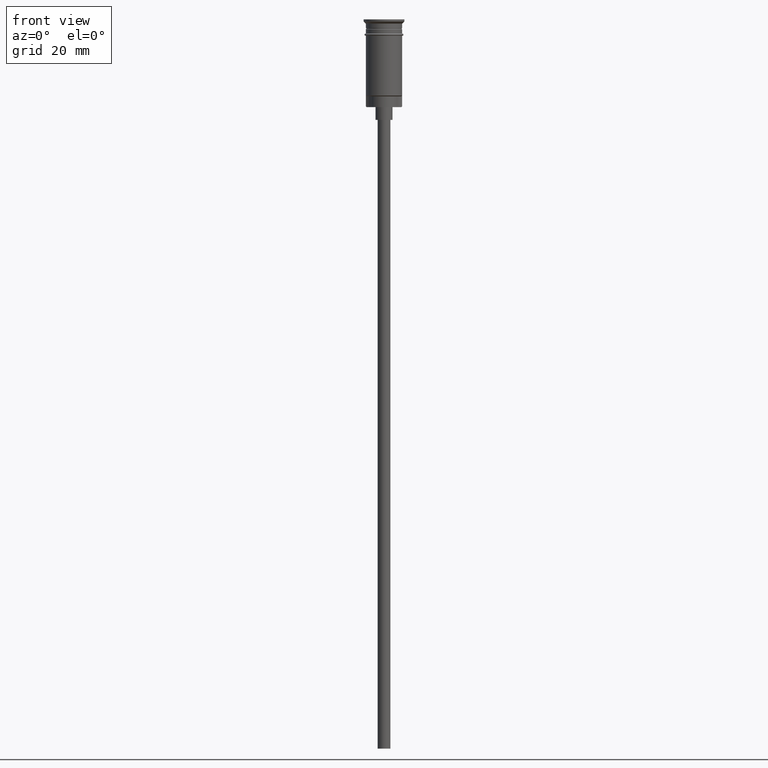
[diagram: clean part render]
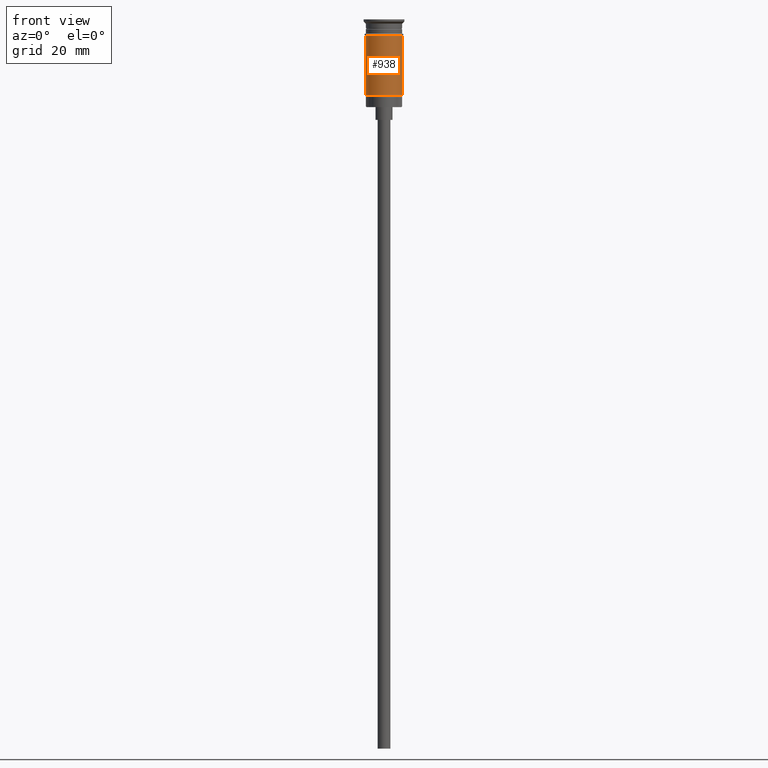
[diagram: same view with one face highlighted and labeled with its STEP entity id]
A machine part, front view. The second image highlights one B-rep face of the part: STEP entity #938.
In plain terms, the highlighted cylindrical surface (edge-blend (fillet) strip) has radius 4.25 mm, axis along (-0, -0, 1).
Its self-contained STEP definition (entity closure, byte-faithful):
#137 = CARTESIAN_POINT ( 'NONE',  ( 4.249999999999996447, 5.204748896376247741E-16, -17.80000000000000071 ) ) ;
#190 = CIRCLE ( 'NONE', #1125, 4.249999999999996447 ) ;
#238 = VERTEX_POINT ( 'NONE', #790 ) ;
#241 = VERTEX_POINT ( 'NONE', #1186 ) ;
#252 = DIRECTION ( 'NONE',  ( -0.000000000000000000, -0.000000000000000000, 1.000000000000000000 ) ) ;
#253 = ORIENTED_EDGE ( 'NONE', *, *, #375, .F. ) ;
#281 = EDGE_CURVE ( 'NONE', #241, #1119, #1097, .T. ) ;
#347 = VERTEX_POINT ( 'NONE', #137 ) ;
#375 = EDGE_CURVE ( 'NONE', #1119, #238, #895, .T. ) ;
#411 = CARTESIAN_POINT ( 'NONE',  ( 0.000000000000000000, 0.000000000000000000, -3.799999999999998934 ) ) ;
#441 = DIRECTION ( 'NONE',  ( -0.000000000000000000, -0.000000000000000000, 1.000000000000000000 ) ) ;
#546 = CARTESIAN_POINT ( 'NONE',  ( -4.249999999999999112, 5.204748896376250699E-16, -3.799999999999998934 ) ) ;
#563 = CARTESIAN_POINT ( 'NONE',  ( 0.000000000000000000, 0.000000000000000000, -17.80000000000000071 ) ) ;
#602 = VECTOR ( 'NONE', #982, 1000.000000000000000 ) ;
#606 = DIRECTION ( 'NONE',  ( -0.000000000000000000, -0.000000000000000000, 1.000000000000000000 ) ) ;
#608 = CARTESIAN_POINT ( 'NONE',  ( -4.249999999999996447, 5.204748896376247741E-16, 0.000000000000000000 ) ) ;
#631 = DIRECTION ( 'NONE',  ( -0.000000000000000000, -0.000000000000000000, 1.000000000000000000 ) ) ;
#745 = LINE ( 'NONE', #870, #602 ) ;
#790 = CARTESIAN_POINT ( 'NONE',  ( 4.249999999999999112, 0.000000000000000000, -3.799999999999998934 ) ) ;
#851 = EDGE_CURVE ( 'NONE', #241, #347, #190, .T. ) ;
#866 = FACE_OUTER_BOUND ( 'NONE', #1300, .T. ) ;
#870 = CARTESIAN_POINT ( 'NONE',  ( 4.249999999999996447, 0.000000000000000000, 0.000000000000000000 ) ) ;
#895 = CIRCLE ( 'NONE', #1461, 4.249999999999999112 ) ;
#938 = ADVANCED_FACE ( 'NONE', ( #866 ), #1473, .T. ) ;
#982 = DIRECTION ( 'NONE',  ( -0.000000000000000000, -0.000000000000000000, 1.000000000000000000 ) ) ;
#1097 = LINE ( 'NONE', #608, #1503 ) ;
#1104 = AXIS2_PLACEMENT_3D ( 'NONE', #1488, #606, #1356 ) ;
#1119 = VERTEX_POINT ( 'NONE', #546 ) ;
#1125 = AXIS2_PLACEMENT_3D ( 'NONE', #563, #441, #1424 ) ;
#1136 = ORIENTED_EDGE ( 'NONE', *, *, #1341, .T. ) ;
#1162 = ORIENTED_EDGE ( 'NONE', *, *, #851, .T. ) ;
#1186 = CARTESIAN_POINT ( 'NONE',  ( -4.249999999999994671, 0.000000000000000000, -17.80000000000000071 ) ) ;
#1280 = DIRECTION ( 'NONE',  ( 1.000000000000000000, 0.000000000000000000, 0.000000000000000000 ) ) ;
#1291 = ORIENTED_EDGE ( 'NONE', *, *, #281, .F. ) ;
#1300 = EDGE_LOOP ( 'NONE', ( #1291, #1162, #1136, #253 ) ) ;
#1341 = EDGE_CURVE ( 'NONE', #347, #238, #745, .T. ) ;
#1356 = DIRECTION ( 'NONE',  ( 1.000000000000000000, 0.000000000000000000, 0.000000000000000000 ) ) ;
#1424 = DIRECTION ( 'NONE',  ( -1.000000000000000000, 0.000000000000000000, 0.000000000000000000 ) ) ;
#1461 = AXIS2_PLACEMENT_3D ( 'NONE', #411, #631, #1280 ) ;
#1473 = CYLINDRICAL_SURFACE ( 'NONE', #1104, 4.249999999999996447 ) ;
#1488 = CARTESIAN_POINT ( 'NONE',  ( 0.000000000000000000, 0.000000000000000000, 0.000000000000000000 ) ) ;
#1503 = VECTOR ( 'NONE', #252, 1000.000000000000000 ) ;